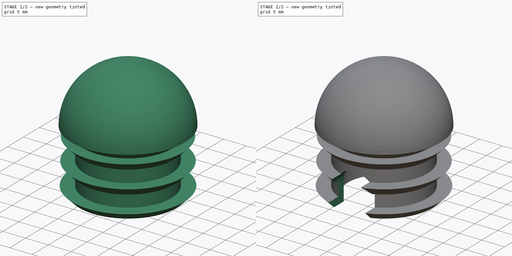
[diagram: build sequence overview — one tinted view per stage of 2, left to right]
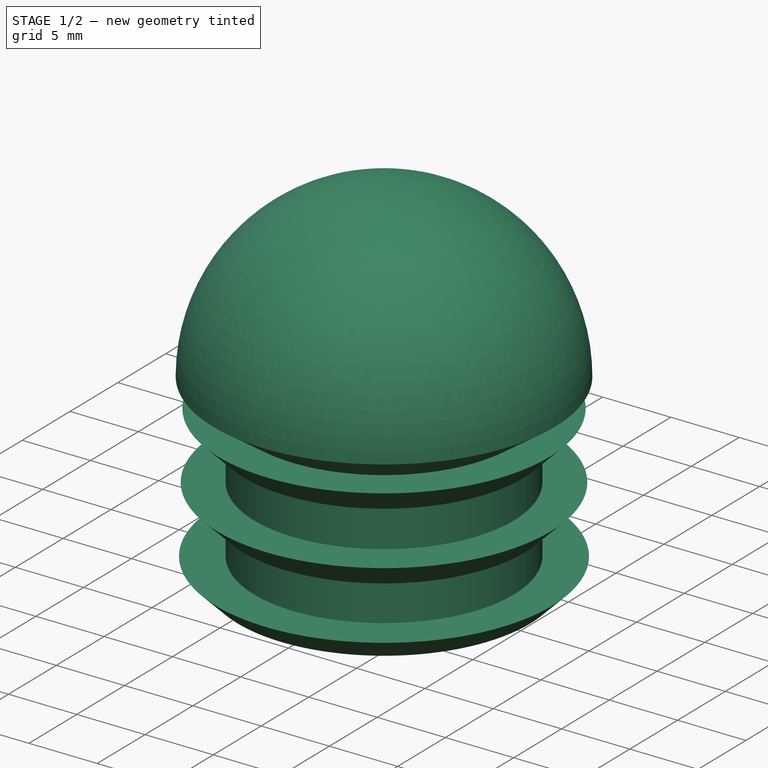
[diagram: stage 1 of 2 — iso view after this stage's code; geometry added in this stage tinted green]
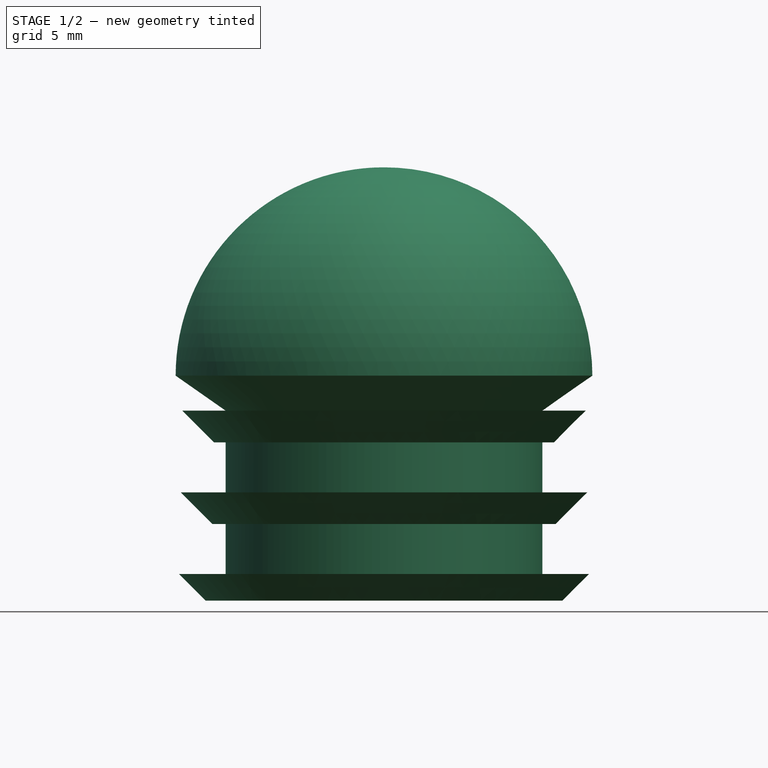
[diagram: stage 1 of 2 — front view after this stage's code; geometry added in this stage tinted green]
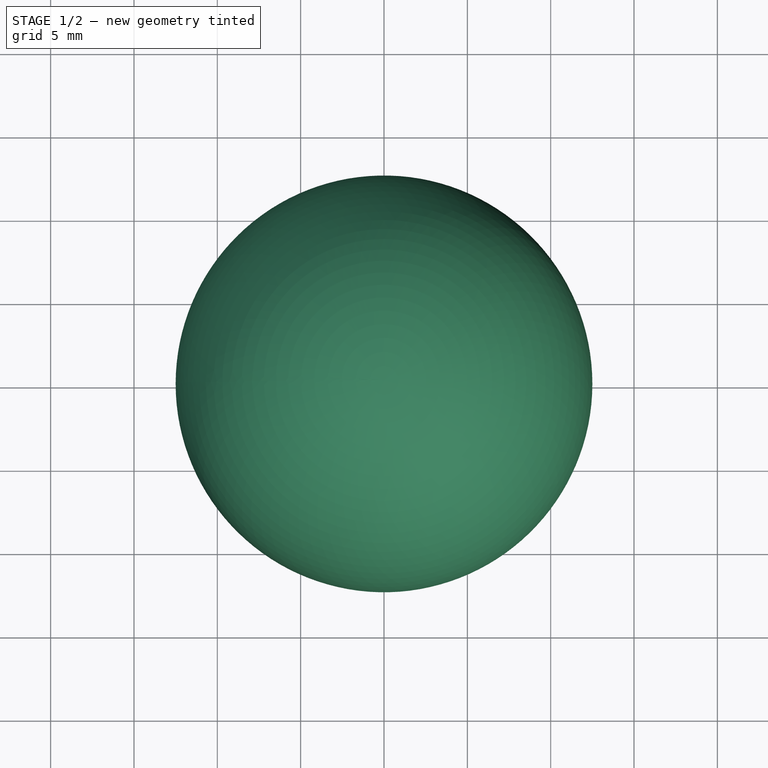
[diagram: stage 1 of 2 — top view after this stage's code; geometry added in this stage tinted green]
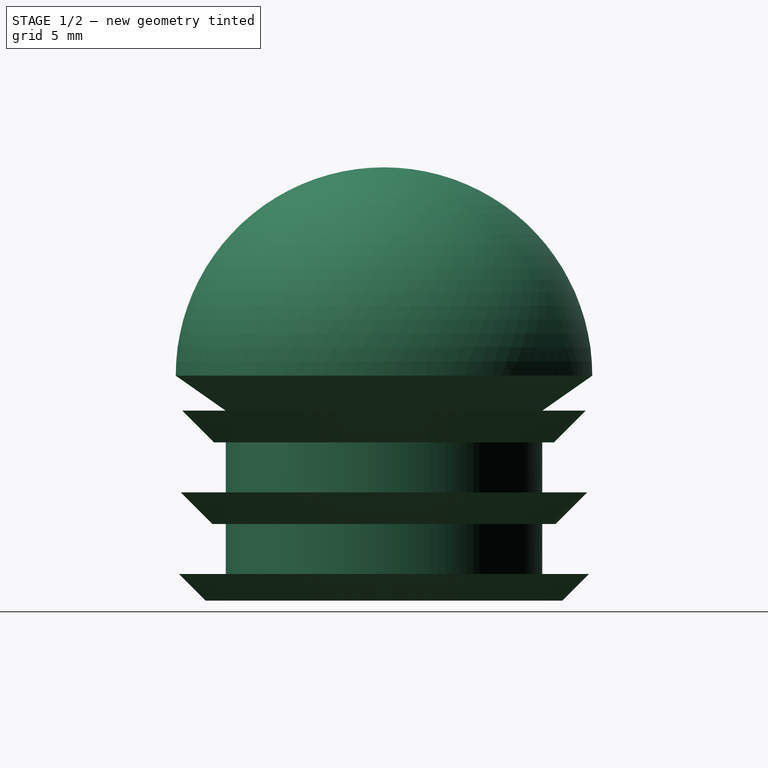
[diagram: stage 1 of 2 — right view after this stage's code; geometry added in this stage tinted green]
FCSTD DOCUMENT  (FreeCAD 0.20R29177 (Git))
Label: standing_table_tip
License: All rights reserved
LicenseURL: http://en.wikipedia.org/wiki/All_rights_reserved
objects: Sketcher::SketchObject×2, PartDesign::Revolution×1, PartDesign::Plane×1, PartDesign::Pocket×1, PartDesign::Body×1
note: 8 computed .brp shape members not serialized (recipe doc carries the construction recipe); baked Part::Feature solids carry a one-line shape summary decoded from their .brp

FEATURE [Sketcher::SketchObject] Sketch
  FullyConstrained = true
  MapMode = 5
  Placement = pos=(0,0,0) rot=(1,0,0;1.5708rad)
  Support = -> [XZ_Plane]
  sketch-geometry (24):
    g0: ArcOfCircle CenterX=0 CenterY=13.5 CenterZ=0 NormalX=0 NormalY=0 NormalZ=1 AngleXU=0 Radius=8 StartAngle=1.5708 EndAngle=3.14159
    g1: ArcOfCircle CenterX=0 CenterY=13.5 CenterZ=0 NormalX=0 NormalY=0 NormalZ=1 AngleXU=0 Radius=12.5 StartAngle=1.5708 EndAngle=3.14159
    g2: LineSegment StartX=8e-16 StartY=26 StartZ=0 EndX=5e-16 EndY=21.5 EndZ=0
    g3: LineSegment StartX=-12.5 StartY=13.5 StartZ=0 EndX=-12.5 EndY=0 EndZ=0
    g4: LineSegment StartX=-8 StartY=13.5 StartZ=0 EndX=-8 EndY=0 EndZ=0
    g5: LineSegment StartX=-12.5 StartY=0 StartZ=0 EndX=-8 EndY=0 EndZ=0
    g6: LineSegment StartX=-12.5 StartY=13.5 StartZ=0 EndX=-9.5 EndY=13.5 EndZ=0
    g7: LineSegment StartX=-9.5 StartY=13.5 StartZ=0 EndX=-9.5 EndY=0 EndZ=0
    g8: LineSegment StartX=-9.5 StartY=13.5 StartZ=0 EndX=-9.5 EndY=11.4 EndZ=0
    g9: LineSegment StartX=-9.5 StartY=11.4 StartZ=0 EndX=-9.5 EndY=9.5 EndZ=0
    g10: LineSegment StartX=-9.5 StartY=11.4 StartZ=0 EndX=-12.1 EndY=11.4 EndZ=0
    g11: LineSegment StartX=-12.1 StartY=11.4 StartZ=0 EndX=-10.2 EndY=9.5 EndZ=0
    g12: LineSegment StartX=-10.2 StartY=9.5 StartZ=0 EndX=-9.5 EndY=9.5 EndZ=0
    g13: LineSegment StartX=-9.5 StartY=9.5 StartZ=0 EndX=-9.5 EndY=6.5 EndZ=0
    g14: LineSegment StartX=-9.5 StartY=6.5 StartZ=0 EndX=-12.2 EndY=6.5 EndZ=0
    g15: LineSegment StartX=-12.2 StartY=6.5 StartZ=0 EndX=-10.3 EndY=4.6 EndZ=0
    g16: LineSegment StartX=-10.3 StartY=4.6 StartZ=0 EndX=-9.5 EndY=4.6 EndZ=0
    g17: LineSegment StartX=-9.5 StartY=4.6 StartZ=0 EndX=-9.5 EndY=1.6 EndZ=0
    g18: LineSegment StartX=-9.5 StartY=1.6 StartZ=0 EndX=-12.3 EndY=1.6 EndZ=0
    g19: LineSegment StartX=-12.3 StartY=1.6 StartZ=0 EndX=-10.7 EndY=1.3e-15 EndZ=0
    g20: LineSegment StartX=-10.7 StartY=1.3e-15 StartZ=0 EndX=-9.5 EndY=1.3e-15 EndZ=0
    g21: LineSegment StartX=-9.5 StartY=1.3e-15 StartZ=0 EndX=-9.5 EndY=0 EndZ=0
    g22: LineSegment StartX=-9.5 StartY=0 StartZ=0 EndX=-8 EndY=0 EndZ=0
    g23: LineSegment StartX=-12.5 StartY=13.5 StartZ=0 EndX=-9.5 EndY=11.4 EndZ=0
  constraints (68):
    c: Coincident(g1,g0)
    c: Coincident(g2,g1)
    c: Coincident(g2,g0)
    c: Horizontal(g0,g1)
    c: PointOnObject(g0,g-2)
    c: Angle(g0) = 1.5708
    c: Tangent(g2,g-2)
    c: Coincident(g3,g1)
    c: PointOnObject(g3,g-1)
    c: Vertical(g3)
    c: Coincident(g4,g0)
    c: PointOnObject(g4,g-1)
    c: Vertical(g4)
    c: Coincident(g5,g3)
    c: Coincident(g5,g4)
    c: Distance(g1,g0) = 4.5
    c: Distance(g-1,g3) = 12.5
    c: Coincident(g6,g1)
    c: Horizontal(g6)
    c: Coincident(g7,g6)
    c: PointOnObject(g7,g5)
    c: Vertical(g7)
    c: Distance(g7,g4) = 1.5
    c: Coincident(g8,g6)
    c: PointOnObject(g8,g7)
    c: Distance(g6,g8) = 2.1
    c: Coincident(g9,g8)
    c: PointOnObject(g9,g7)
    c: Distance(g9,g8) = 1.9
    c: Coincident(g8,g10)
    c: Horizontal(g10)
    c: Coincident(g10,g11)
    c: Coincident(g11,g12)
    c: Coincident(g12,g9)
    c: Horizontal(g12)
    c: Angle(g11,g10) = 0.785398
    c: Distance(g10,g8) = 2.6
    c: Coincident(g13,g12)
    c: PointOnObject(g13,g7)
    c: Distance(g13) = 3
    c: Coincident(g13,g14)
    c: Horizontal(g14)
    c: Coincident(g14,g15)
    c: Coincident(g15,g16)
    c: PointOnObject(g16,g7)
    c: Horizontal(g16)
    c: Distance(g13,g16) = 1.9
    c: Angle(g15,g14) = 0.785398
    c: Distance(g14) = 2.7
    c: Coincident(g16,g17)
    c: PointOnObject(g17,g7)
    c: Coincident(g17,g18)
    c: Horizontal(g18)
    c: Coincident(g18,g19)
    c: Coincident(g19,g20)
    c: PointOnObject(g20,g7)
    c: Horizontal(g20)
    c: Coincident(g20,g21)
    c: Coincident(g21,g7)
    c: Coincident(g21,g22)
    c: Coincident(g22,g4)
    c: Distance(g17,g16) = 3
    c: Angle(g19,g18) = 0.785398
    c: Distance(g17,g20) = 1.6
    c: Distance(g18) = 2.8
    c: Distance(g1,g-1) = 26
    c: Coincident(g23,g1)
    c: Coincident(g23,g10)
FEATURE [PartDesign::Revolution] Revolution
  Angle = 360
  Axis = (0,-2e-16,1)
  Base = (0,0,0)
  Placement = pos=(0,0,0) rot=(1,0,0;1.5708rad)
  Profile = -> Sketch
  ReferenceAxis = -> Sketch [V_Axis]
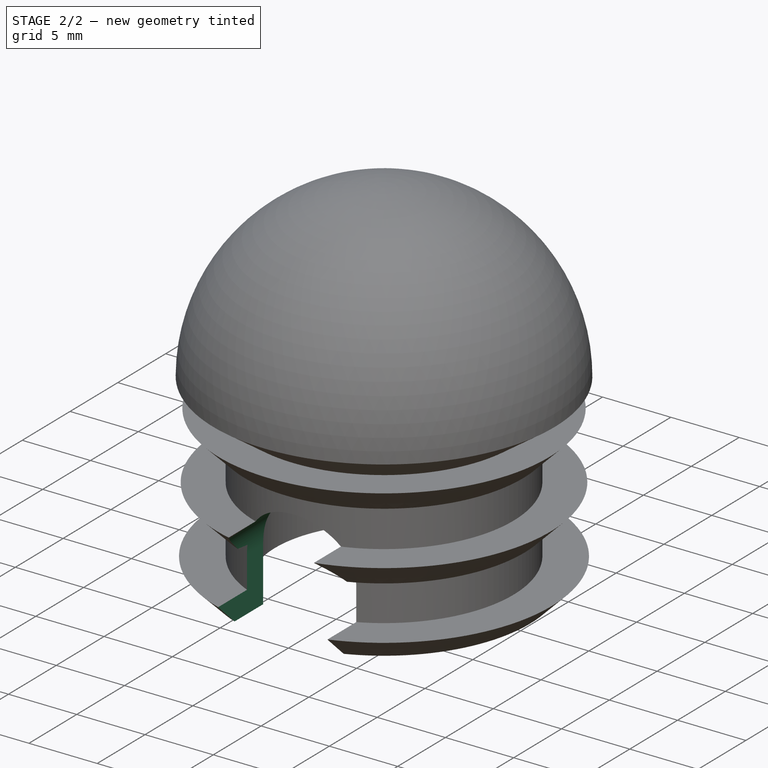
[diagram: stage 2 of 2 — iso view after this stage's code; geometry added in this stage tinted green]
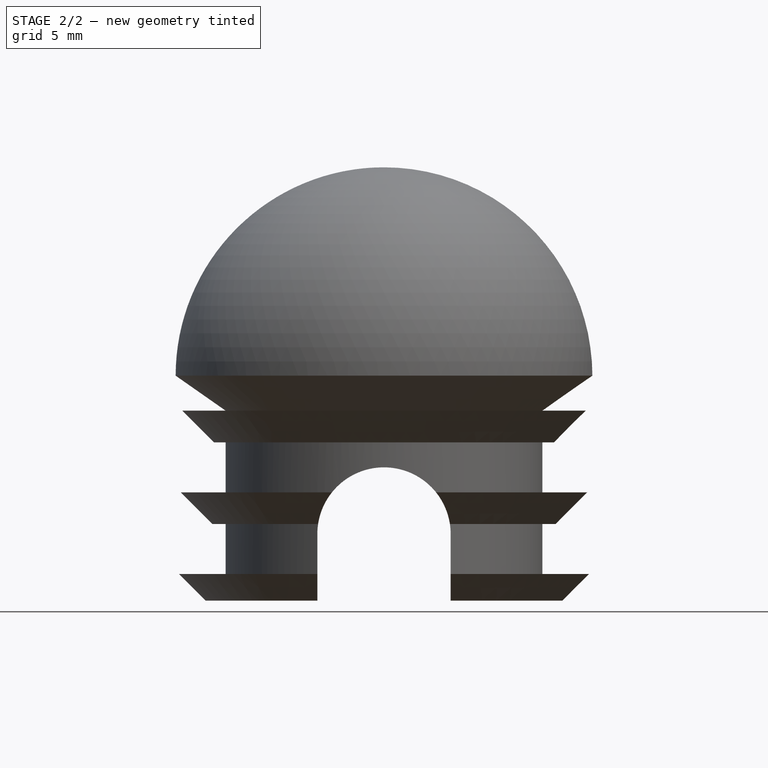
[diagram: stage 2 of 2 — front view after this stage's code; geometry added in this stage tinted green]
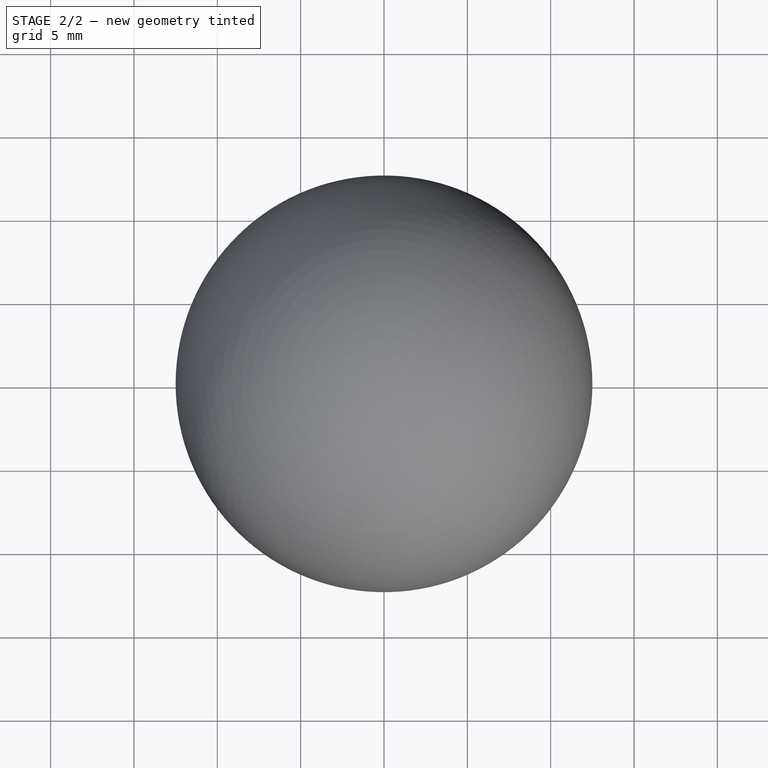
[diagram: stage 2 of 2 — top view after this stage's code; geometry added in this stage tinted green]
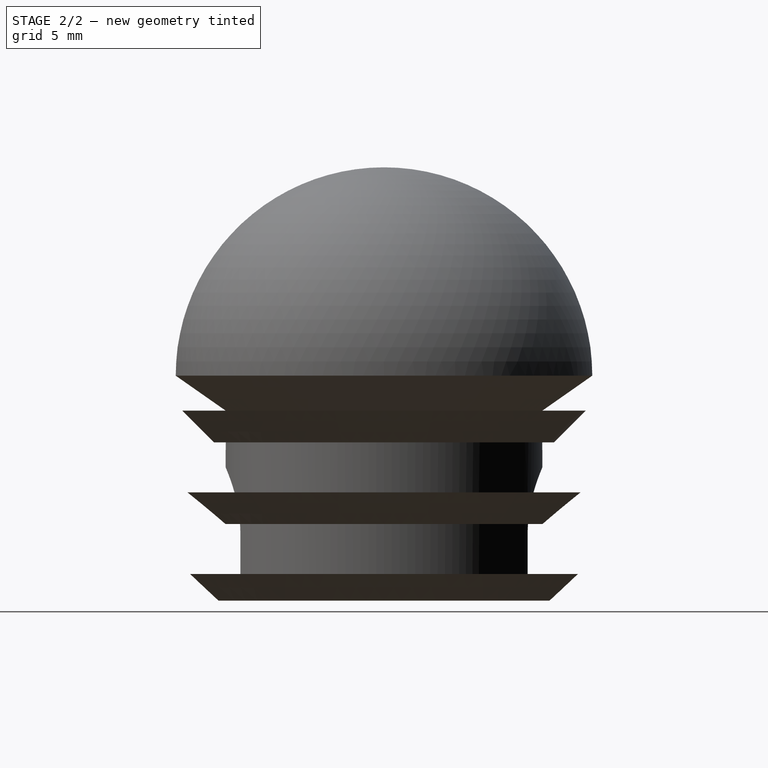
[diagram: stage 2 of 2 — right view after this stage's code; geometry added in this stage tinted green]
FEATURE [PartDesign::Plane] DatumPlane
  AttachmentOffset = pos=(0,0,-12.5) rot=(0,0,1;0rad)
  Length = 60.0995
  MapMode = 2
  Placement = pos=(0,12.5,2.8e-15) rot=(1,0,0;1.5708rad)
  ResizeMode = 0
  Support = -> [XZ_Plane]
  Width = 61.0995
FEATURE [Sketcher::SketchObject] Sketch001
  FullyConstrained = true
  MapMode = 5
  Placement = pos=(0,12.5,2.8e-15) rot=(1,0,0;1.5708rad)
  Support = -> [DatumPlane]
  sketch-geometry (6):
    g0: LineSegment StartX=4 StartY=4 StartZ=0 EndX=4 EndY=0 EndZ=0
    g1: LineSegment StartX=4 StartY=0 StartZ=0 EndX=-4 EndY=0 EndZ=0
    g2: LineSegment StartX=-4 StartY=0 StartZ=0 EndX=-4 EndY=4 EndZ=0
    g3: LineSegment StartX=-4 StartY=4 StartZ=0 EndX=4 EndY=4 EndZ=0
    g4: ArcOfCircle CenterX=1e-16 CenterY=4 CenterZ=0 NormalX=0 NormalY=0 NormalZ=1 AngleXU=0 Radius=4 StartAngle=1e-16 EndAngle=3.14159
    g5: GeomPoint X=0 Y=8 Z=0
  constraints (16):
    c: Coincident(g0,g1)
    c: Coincident(g1,g2)
    c: Vertical(g0)
    c: Vertical(g2)
    c: Equal(g0,g2)
    c: PointOnObject(g0,g-1)
    c: Coincident(g3,g2)
    c: Coincident(g3,g0)
    c: PointOnObject(g4,g3)
    c: Coincident(g4,g0)
    c: Coincident(g4,g2)
    c: Symmetric(g0,g1,g-2)
    c: Distance(g1) = 8
    c: PointOnObject(g5,g4)
    c: PointOnObject(g5,g-2)
    c: Distance(g5,g1) = 8
FEATURE [PartDesign::Pocket] Pocket
  BaseFeature = -> Revolution
  Direction = (0,1,2e-16)
  Length = 25
  Length2 = 100
  Placement = pos=(0,0,0) rot=(1,0,0;1.5708rad)
  Profile = -> Sketch001
  Reversed = true
  Type = 0
FEATURE [PartDesign::Body] Body
  Group = -> [Sketch,Revolution,DatumPlane,Sketch001,Pocket]
  Origin = -> Origin
  Tip = -> Pocket
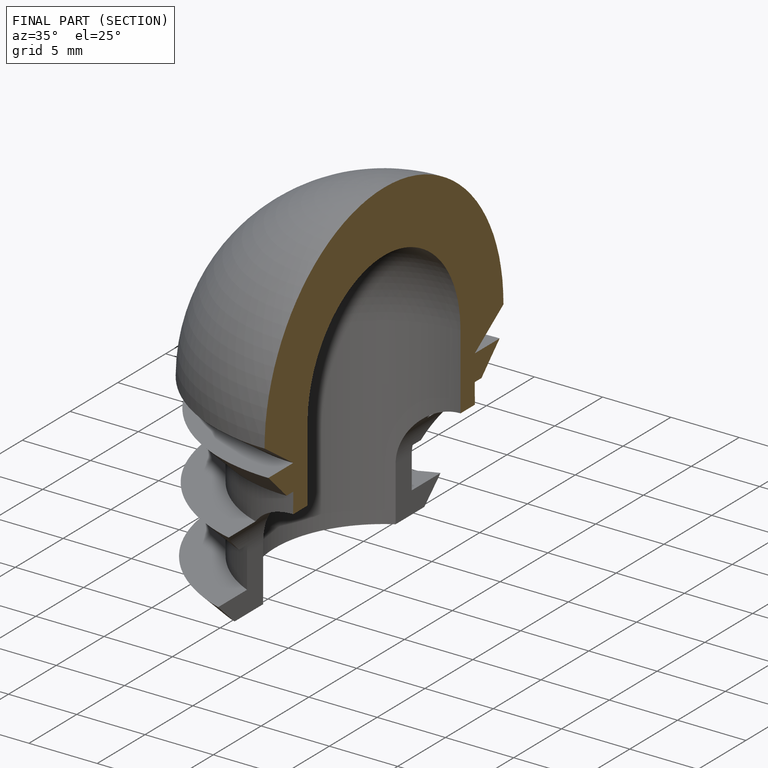
[diagram: finished part — half-section view (interior)]
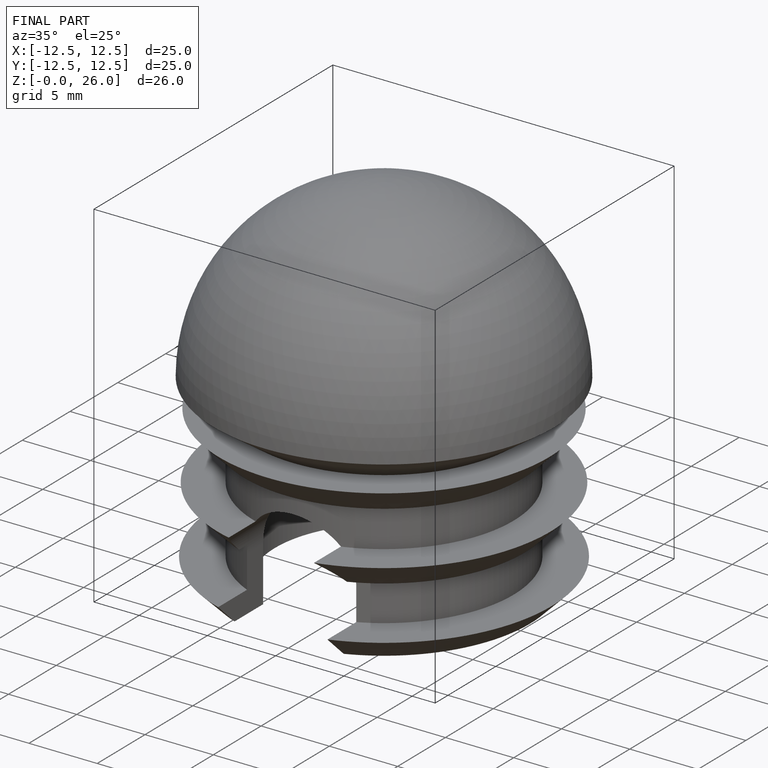
[diagram: finished part — iso view with bounding-box wireframe]
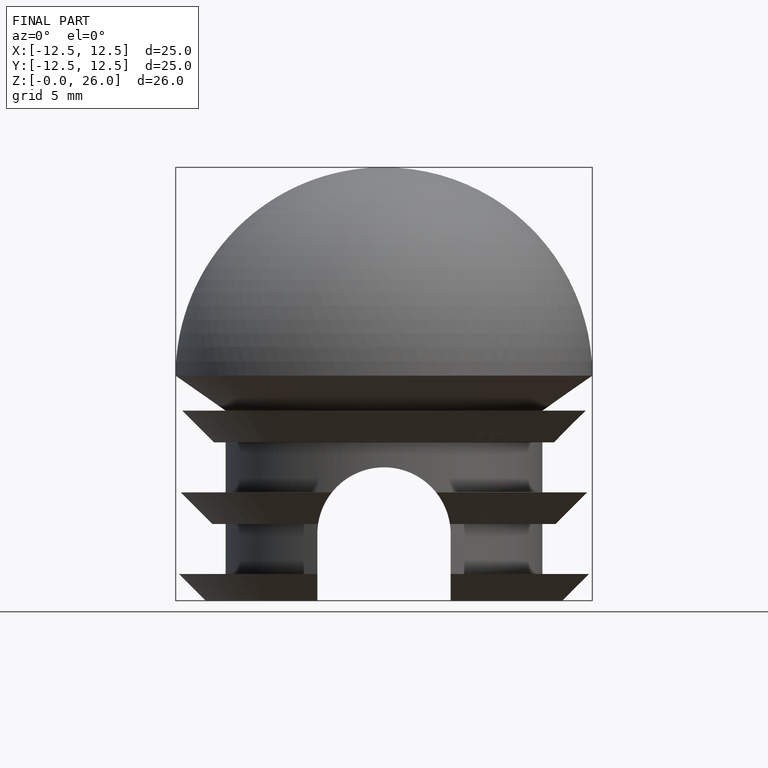
[diagram: finished part — front view with bounding-box wireframe]
